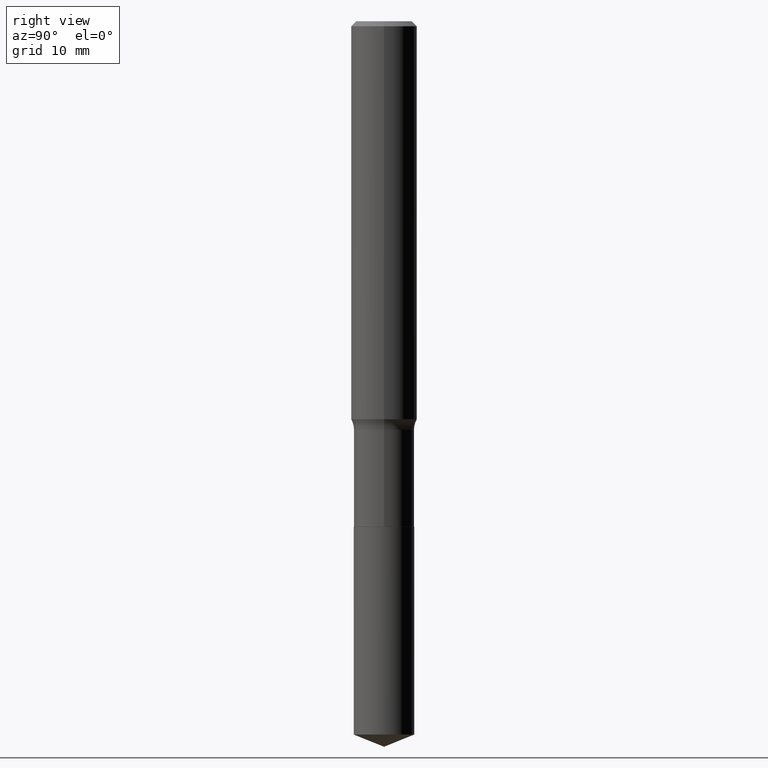
[diagram: clean part render]
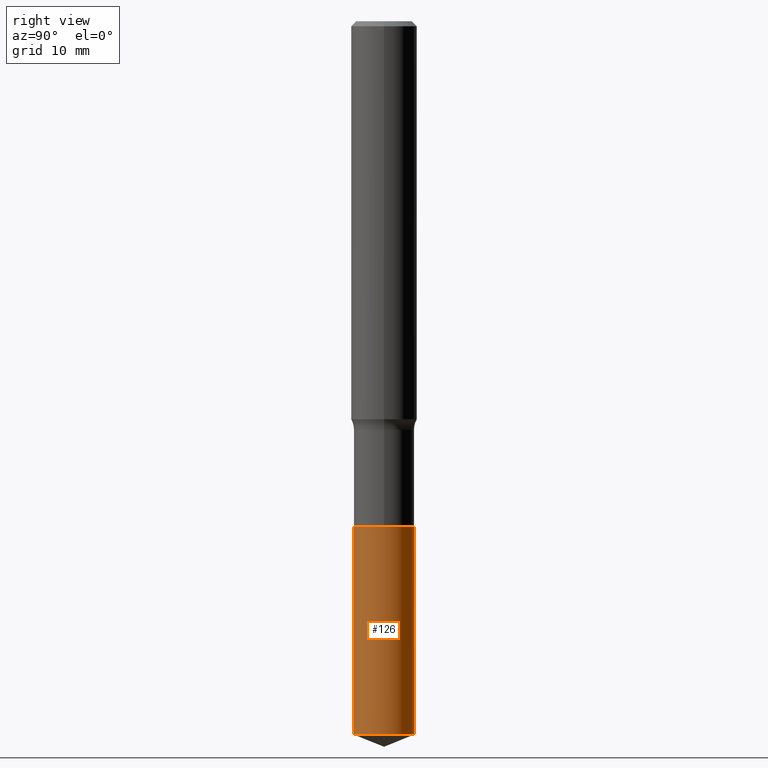
[diagram: same view with one face highlighted and labeled with its STEP entity id]
A machine part, right view. The second image highlights one B-rep face of the part: STEP entity #126.
In plain terms, the highlighted cylindrical surface (edge-blend (fillet) strip) has radius 2.7495 mm, axis along (-0, 0, 1).
Its self-contained STEP definition (entity closure, byte-faithful):
#4 = AXIS2_PLACEMENT_3D ( 'NONE', #154, #72, #447 ) ;
#34 = AXIS2_PLACEMENT_3D ( 'NONE', #413, #68, #112 ) ;
#54 = DIRECTION ( 'NONE',  ( -2.431437355357483089E-29, 3.511575175048930123E-15, 1.000000000000000000 ) ) ;
#55 = AXIS2_PLACEMENT_3D ( 'NONE', #121, #54, #423 ) ;
#58 = ORIENTED_EDGE ( 'NONE', *, *, #384, .F. ) ;
#68 = DIRECTION ( 'NONE',  ( -2.431437355357483089E-29, 3.511575175048930123E-15, 1.000000000000000000 ) ) ;
#72 = DIRECTION ( 'NONE',  ( -2.431437355357483089E-29, 3.511575175048930123E-15, 1.000000000000000000 ) ) ;
#93 = EDGE_CURVE ( 'NONE', #430, #249, #299, .T. ) ;
#111 = VERTEX_POINT ( 'NONE', #290 ) ;
#112 = DIRECTION ( 'NONE',  ( -6.982962677686265922E-15, -1.000000000000000000, 2.523647107311097814E-15 ) ) ;
#113 = CIRCLE ( 'NONE', #4, 0.1082500000000000129 ) ;
#121 = CARTESIAN_POINT ( 'NONE',  ( 4.428744008001282238E-29, -6.323072704644935995E-15, -1.810999999999999943 ) ) ;
#126 = ADVANCED_FACE ( 'NONE', ( #275 ), #420, .T. ) ;
#132 = ORIENTED_EDGE ( 'NONE', *, *, #93, .F. ) ;
#133 = ORIENTED_EDGE ( 'NONE', *, *, #272, .T. ) ;
#154 = CARTESIAN_POINT ( 'NONE',  ( 6.236916829026965936E-29, -8.934505311173447321E-15, -2.554664161053343818 ) ) ;
#156 = CARTESIAN_POINT ( 'NONE',  ( -7.559057098594758424E-16, -0.1082500000000089224, -2.554664161053343374 ) ) ;
#157 = EDGE_CURVE ( 'NONE', #437, #111, #313, .T. ) ;
#249 = VERTEX_POINT ( 'NONE', #382 ) ;
#253 = CARTESIAN_POINT ( 'NONE',  ( -7.559057098594939862E-16, -0.1082500000000063134, -1.810999999999999721 ) ) ;
#272 = EDGE_CURVE ( 'NONE', #430, #437, #113, .T. ) ;
#275 = FACE_OUTER_BOUND ( 'NONE', #294, .T. ) ;
#278 = CARTESIAN_POINT ( 'NONE',  ( 7.691625114603526203E-16, 0.1082499999999936846, -1.811000000000000165 ) ) ;
#290 = CARTESIAN_POINT ( 'NONE',  ( 7.691625114603707641E-16, 0.1082499999999936846, -1.811000000000000165 ) ) ;
#294 = EDGE_LOOP ( 'NONE', ( #133, #400, #58, #132 ) ) ;
#299 = LINE ( 'NONE', #253, #381 ) ;
#313 = LINE ( 'NONE', #278, #470 ) ;
#381 = VECTOR ( 'NONE', #452, 39.37007874015748143 ) ;
#382 = CARTESIAN_POINT ( 'NONE',  ( -7.559057098594939862E-16, -0.1082500000000063134, -1.810999999999999721 ) ) ;
#384 = EDGE_CURVE ( 'NONE', #249, #111, #462, .T. ) ;
#400 = ORIENTED_EDGE ( 'NONE', *, *, #157, .T. ) ;
#409 = CARTESIAN_POINT ( 'NONE',  ( 7.691625114603706655E-16, 0.1082499999999910756, -2.554664161053344262 ) ) ;
#413 = CARTESIAN_POINT ( 'NONE',  ( 4.428744008001282238E-29, -6.323072704644935995E-15, -1.810999999999999943 ) ) ;
#420 = CYLINDRICAL_SURFACE ( 'NONE', #55, 0.1082499999999999990 ) ;
#423 = DIRECTION ( 'NONE',  ( -6.982962677686265922E-15, -1.000000000000000000, 2.523647107311097814E-15 ) ) ;
#430 = VERTEX_POINT ( 'NONE', #156 ) ;
#437 = VERTEX_POINT ( 'NONE', #409 ) ;
#447 = DIRECTION ( 'NONE',  ( -6.982962677686265922E-15, -1.000000000000000000, 5.047294214622194840E-15 ) ) ;
#452 = DIRECTION ( 'NONE',  ( -2.431437355357483089E-29, 3.511575175048929728E-15, 1.000000000000000000 ) ) ;
#462 = CIRCLE ( 'NONE', #34, 0.1082499999999999990 ) ;
#468 = DIRECTION ( 'NONE',  ( -2.431437355357483089E-29, 3.511575175048929728E-15, 1.000000000000000000 ) ) ;
#470 = VECTOR ( 'NONE', #468, 39.37007874015748143 ) ;